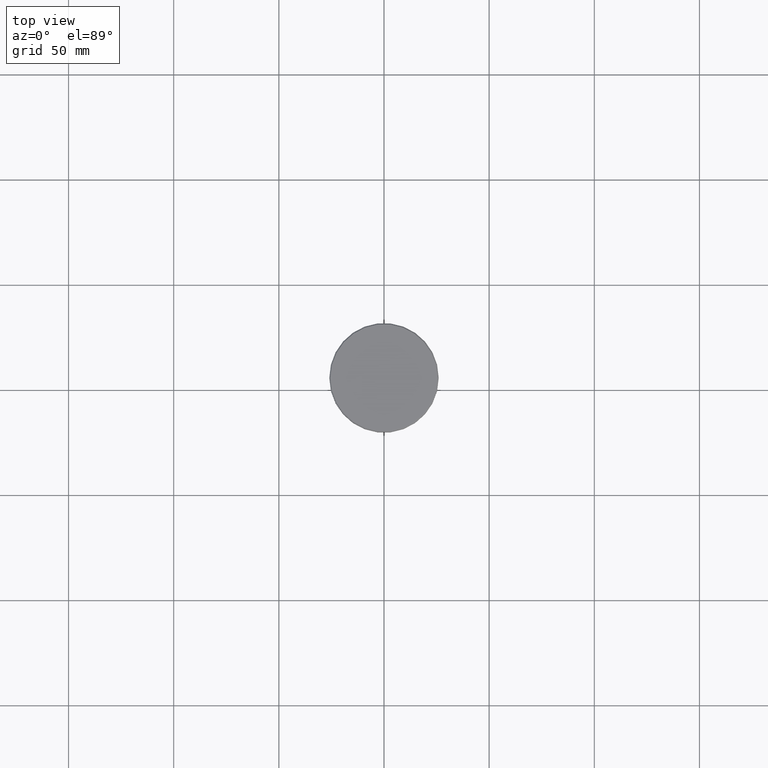
[diagram: clean part render]
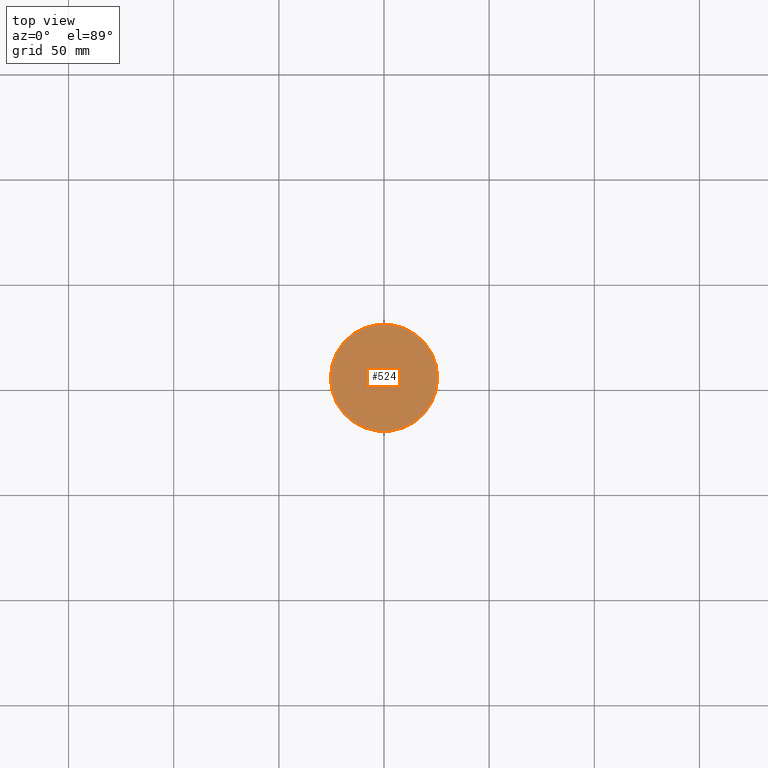
[diagram: same view with one face highlighted and labeled with its STEP entity id]
A machine part, top view. The second image highlights one B-rep face of the part: STEP entity #524.
In plain terms, the highlighted planar face has unit normal (0, -0, 1).
Its self-contained STEP definition (entity closure, byte-faithful):
#10 = CARTESIAN_POINT ( 'NONE',  ( 0.000000000000000000, 0.000000000000000000, 0.000000000000000000 ) ) ;
#18 = EDGE_LOOP ( 'NONE', ( #878, #936 ) ) ;
#24 = AXIS2_PLACEMENT_3D ( 'NONE', #903, #1165, #732 ) ;
#84 = AXIS2_PLACEMENT_3D ( 'NONE', #285, #808, #96 ) ;
#96 = DIRECTION ( 'NONE',  ( 1.000000000000000000, 0.000000000000000000, 0.000000000000000000 ) ) ;
#167 = PLANE ( 'NONE',  #24 ) ;
#183 = CARTESIAN_POINT ( 'NONE',  ( 25.50000000000005329, 3.153465507804437559E-15, 0.000000000000000000 ) ) ;
#210 = VERTEX_POINT ( 'NONE', #183 ) ;
#267 = EDGE_CURVE ( 'NONE', #210, #847, #1146, .T. ) ;
#285 = CARTESIAN_POINT ( 'NONE',  ( 0.000000000000000000, 0.000000000000000000, 0.000000000000000000 ) ) ;
#299 = DIRECTION ( 'NONE',  ( -0.000000000000000000, -0.000000000000000000, 1.000000000000000000 ) ) ;
#437 = CIRCLE ( 'NONE', #84, 25.50000000000005329 ) ;
#524 = ADVANCED_FACE ( 'NONE', ( #990 ), #167, .T. ) ;
#590 = DIRECTION ( 'NONE',  ( 1.000000000000000000, 0.000000000000000000, 0.000000000000000000 ) ) ;
#732 = DIRECTION ( 'NONE',  ( 1.000000000000000000, 0.000000000000000000, 0.000000000000000000 ) ) ;
#808 = DIRECTION ( 'NONE',  ( -0.000000000000000000, -0.000000000000000000, 1.000000000000000000 ) ) ;
#847 = VERTEX_POINT ( 'NONE', #1063 ) ;
#851 = AXIS2_PLACEMENT_3D ( 'NONE', #10, #299, #590 ) ;
#878 = ORIENTED_EDGE ( 'NONE', *, *, #1172, .T. ) ;
#903 = CARTESIAN_POINT ( 'NONE',  ( 0.000000000000000000, 0.000000000000000000, 0.000000000000000000 ) ) ;
#936 = ORIENTED_EDGE ( 'NONE', *, *, #267, .T. ) ;
#990 = FACE_OUTER_BOUND ( 'NONE', #18, .T. ) ;
#1063 = CARTESIAN_POINT ( 'NONE',  ( -25.50000000000005329, 0.000000000000000000, 0.000000000000000000 ) ) ;
#1146 = CIRCLE ( 'NONE', #851, 25.50000000000005329 ) ;
#1165 = DIRECTION ( 'NONE',  ( 0.000000000000000000, -0.000000000000000000, 1.000000000000000000 ) ) ;
#1172 = EDGE_CURVE ( 'NONE', #847, #210, #437, .T. ) ;